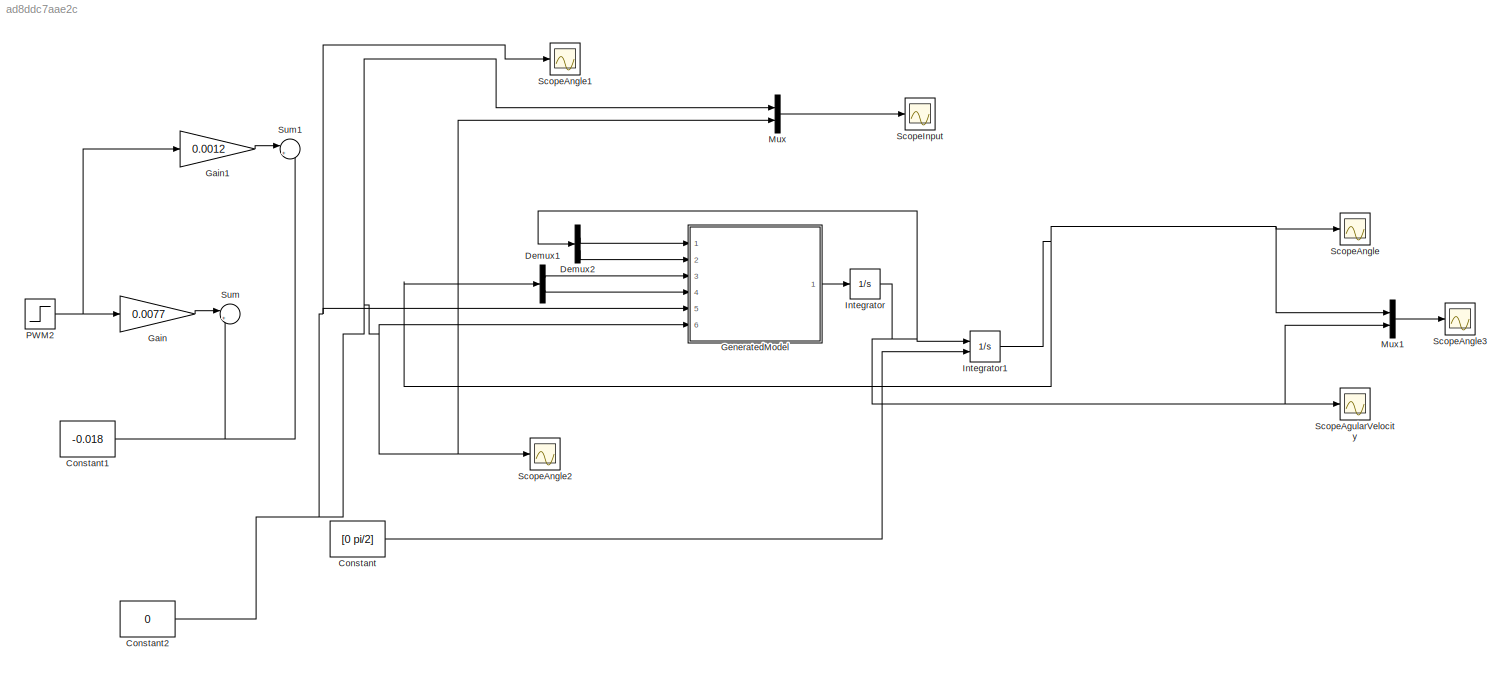
MODEL slx_ad8ddc7aae2c
KIND model
BLOCK [Constant] Constant
  Value = [0 pi/2]
BLOCK [Constant] Constant1
  Value = -0.018
BLOCK [Constant] Constant2
  Value = 0
BLOCK [Demux] Demux1
  DisplayOption = bar
  Outputs = 2
  Ports = [1, 2]
BLOCK [Demux] Demux2
  DisplayOption = bar
  Outputs = 2
  Ports = [1, 2]
BLOCK [Gain] Gain
  Gain = 0.0077
  OutDataTypeStr = Inherit: Inherit via internal rule
  ParamDataTypeStr = Inherit: Inherit via internal rule
  SaturateOnIntegerOverflow = off
BLOCK [Gain] Gain1
  Gain = 0.0012
  OutDataTypeStr = Inherit: Inherit via internal rule
  ParamDataTypeStr = Inherit: Inherit via internal rule
  SaturateOnIntegerOverflow = off
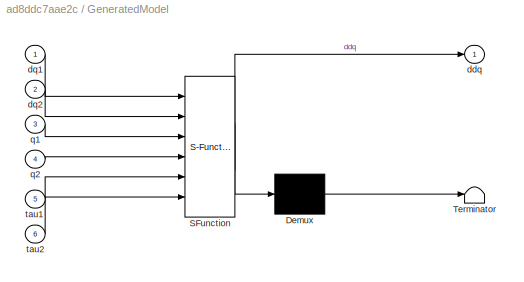
BLOCK [SubSystem] GeneratedModel
  ErrorFcn = Stateflow.Translate.translate
  PermitHierarchicalResolution = ExplicitOnly
  Ports = [6, 1]
  RequestExecContextInheritance = off
  SFBlockType = MATLAB Function
  TreatAsAtomicUnit = on
BLOCK [Demux] GeneratedModel/ Demux 
  Outputs = 1
  Ports = [1, 1]
BLOCK [S-Function] GeneratedModel/ SFunction 
  EnableBusSupport = on
  FunctionName = sf_sfun
  PortCounts = [6 2]
  Ports = [6, 2]
  Tag = Stateflow S-Function GeneratedModelTest 2
BLOCK [Terminator] GeneratedModel/ Terminator 
BLOCK [Outport] GeneratedModel/ddq
  IconDisplay = Port number
BLOCK [Inport] GeneratedModel/dq1
  IconDisplay = Port number
BLOCK [Inport] GeneratedModel/dq2
  IconDisplay = Port number
  Port = 2
BLOCK [Inport] GeneratedModel/q1
  IconDisplay = Port number
  Port = 3
BLOCK [Inport] GeneratedModel/q2
  IconDisplay = Port number
  Port = 4
BLOCK [Inport] GeneratedModel/tau1
  IconDisplay = Port number
  Port = 5
BLOCK [Inport] GeneratedModel/tau2
  IconDisplay = Port number
  Port = 6
BLOCK [Integrator] Integrator
  InitialCondition = [0 0]
  Ports = [1, 1]
BLOCK [Integrator] Integrator1
  InitialCondition = [0 pi-0.1 0.1]
  InitialConditionSource = external
  Ports = [2, 1]
BLOCK [Mux] Mux
  DisplayOption = bar
  Inputs = 2
  Ports = [2, 1]
BLOCK [Mux] Mux1
  DisplayOption = bar
  Inputs = 2
  Ports = [2, 1]
BLOCK [Step] PWM2
  After = 0
  Time = 0
BLOCK [Scope] ScopeAgularVelocity
  DataFormat = StructureWithTime
  Floating = off
  LimitDataPoints = off
  NumInputPorts = 1
  Ports = [1]
  SaveName = jointVelocity
  SaveToWorkspace = on
  ShowLegends = off
  TimeRange = 10
  YMax = 30
  YMin = -40
BLOCK [Scope] ScopeAngle
  DataFormat = StructureWithTime
  Floating = off
  LimitDataPoints = off
  NumInputPorts = 1
  Ports = [1]
  SaveName = jointAngles
  SaveToWorkspace = on
  ShowLegends = off
  TimeRange = 16
  YMax = 2
BLOCK [Scope] ScopeAngle1
  DataFormat = StructureWithTime
  Floating = off
  LimitDataPoints = off
  NumInputPorts = 1
  Ports = [1]
  SaveName = jointAngles1
  SaveToWorkspace = on
  ShowLegends = off
  TimeRange = 10
  YMin = 0
BLOCK [Scope] ScopeAngle2
  DataFormat = StructureWithTime
  Floating = off
  LimitDataPoints = off
  NumInputPorts = 1
  Ports = [1]
  SaveName = jointAngles2
  SaveToWorkspace = on
  ShowLegends = off
  TimeRange = 10
  YMin = 0
BLOCK [Scope] ScopeAngle3
  DataFormat = StructureWithTime
  Floating = off
  LimitDataPoints = off
  NumInputPorts = 1
  Ports = [1]
  SaveName = SimulationStates
  SaveToWorkspace = on
  ShowLegends = off
  TimeRange = 10
  YMin = 0
BLOCK [Scope] ScopeInput
  DataFormat = StructureWithTime
  Floating = off
  LimitDataPoints = off
  NumInputPorts = 1
  Ports = [1]
  SaveName = jointInput
  SaveToWorkspace = on
  ShowLegends = off
  TimeRange = 10
  YMin = 0
BLOCK [Sum] Sum
  IconShape = round
  InputSameDT = off
  Inputs = |++
  OutDataTypeStr = Inherit: Inherit via internal rule
  Ports = [2, 1]
  SaturateOnIntegerOverflow = off
BLOCK [Sum] Sum1
  IconShape = round
  InputSameDT = off
  Inputs = |++
  OutDataTypeStr = Inherit: Inherit via internal rule
  Ports = [2, 1]
  SaturateOnIntegerOverflow = off
NET Constant1:1 -> Sum1:2, Sum:2
NET Constant2:1 -> GeneratedModel:5, GeneratedModel:6, Mux:1, Mux:2, ScopeAngle1:1, ScopeAngle2:1
LINE Constant:1 -> Integrator1:2
LINE Demux1:1 -> GeneratedModel:3
LINE Demux1:2 -> GeneratedModel:4
LINE Demux2:1 -> GeneratedModel:1
LINE Demux2:2 -> GeneratedModel:2
LINE Gain1:1 -> Sum1:1
LINE Gain:1 -> Sum:1
LINE GeneratedModel:1 -> Integrator:1
NET Integrator1:1 -> Demux1:1, Mux1:1, ScopeAngle:1
NET Integrator:1 -> Demux2:1, Integrator1:1, Mux1:2, ScopeAgularVelocity:1
LINE Mux1:1 -> ScopeAngle3:1
LINE Mux:1 -> ScopeInput:1
NET PWM2:1 -> Gain1:1, Gain:1
note: NET lines group one-source signal fan-out (src -> all destinations, sorted); 1:1 wires keep LINE
CHART GeneratedModel states=1 transitions=1
  STATE_LABEL 'eML_blk_kernel()'
  STATE_LABEL 'SCRIPT:\nfunction ddq = GeneratedModel(dq1,dq2,q1,q2,tau1,tau2)\n%#codegen\n\n%    This function was generated by the Symbolic Math Toolbox version 6.1.\n%    06-Jan-2017 15:50:02\n\nt2 = cos(q2);\nt3 = t2.*1.621007635477227e20;\nt4 = t2.^2;\nt5 = t4.*4.324164689001009e19;\nt6 = t3+t5+1.714360266165995e20;\nt7 = 1.0./t6;\nt8 = sin(q2);\nt9 = q2.*2.0;\nt10 = sin(t9);\nddq = [-dq1.*(t7.*1.106804644422573e22-dq2.*t7...<+303ch>'
